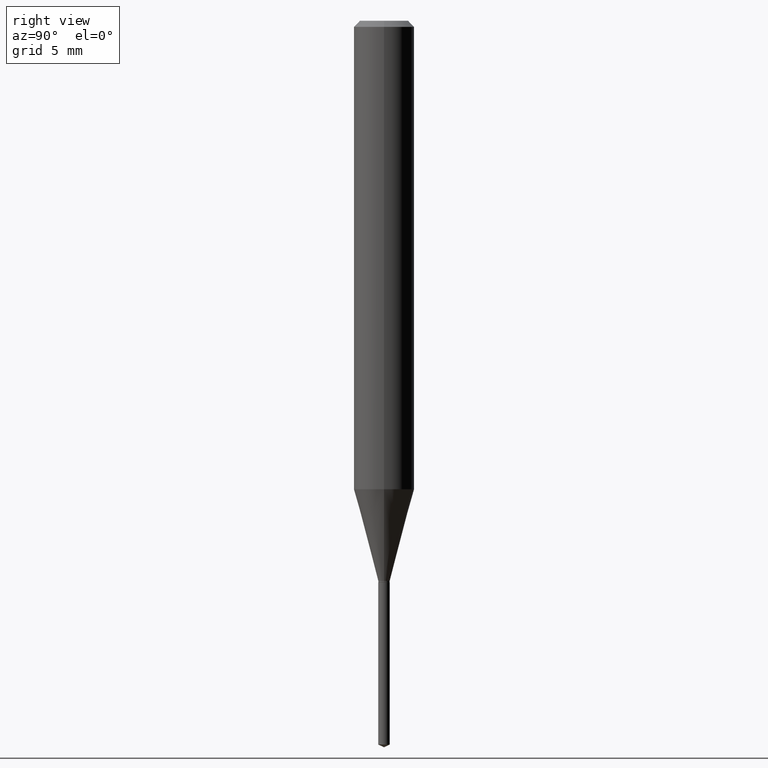
[diagram: clean part render]
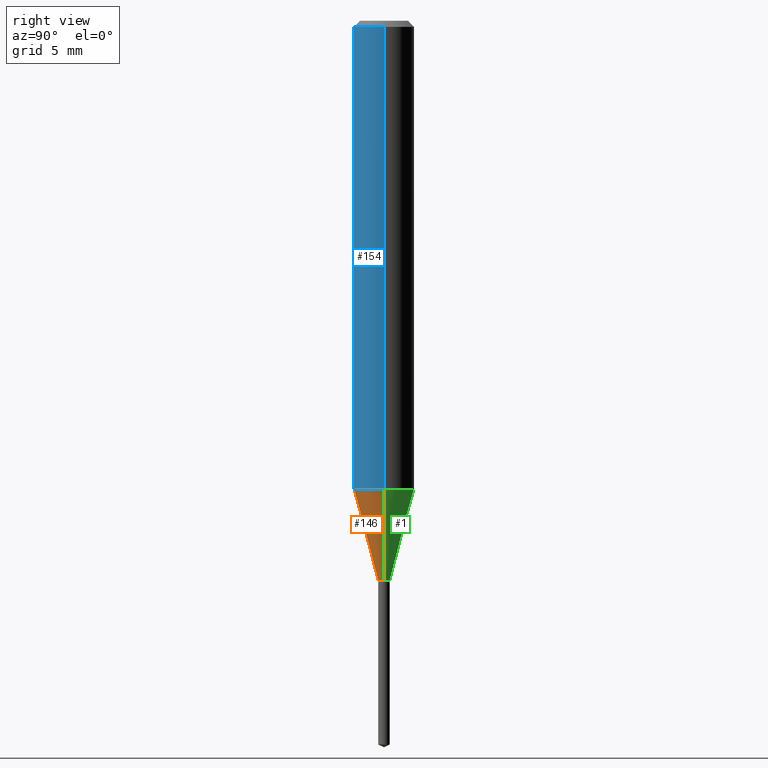
[diagram: same view with three faces highlighted in distinct colors, each labeled with its STEP entity id]
A machine part, right view with three faces highlighted in distinct colors.
Their STEP definitions:

[orange] entity #146 — the highlighted conical surface has half-angle 15 deg.
#10 = CARTESIAN_POINT ( 'NONE',  ( -0.01180000000000000146, -3.954054125552405839E-15, -1.156500000000000083 ) ) ;
#19 = DIRECTION ( 'NONE',  ( -0.2588190451025212391, 5.211531920934549464E-15, 0.9659258262890679791 ) ) ;
#22 = AXIS2_PLACEMENT_3D ( 'NONE', #385, #467, #208 ) ;
#23 = ORIENTED_EDGE ( 'NONE', *, *, #117, .T. ) ;
#62 = AXIS2_PLACEMENT_3D ( 'NONE', #429, #404, #328 ) ;
#105 = AXIS2_PLACEMENT_3D ( 'NONE', #119, #273, #426 ) ;
#109 = CIRCLE ( 'NONE', #105, 0.06250000000000012490 ) ;
#117 = EDGE_CURVE ( 'NONE', #444, #288, #274, .T. ) ;
#119 = CARTESIAN_POINT ( 'NONE',  ( 2.365465353019618098E-29, -3.377257610834867681E-15, -0.9672850240562579360 ) ) ;
#120 = FACE_OUTER_BOUND ( 'NONE', #248, .T. ) ;
#126 = CARTESIAN_POINT ( 'NONE',  ( 0.01180000000000000146, -4.120297127968796017E-15, -1.156500000000000083 ) ) ;
#146 = ADVANCED_FACE ( 'NONE', ( #120 ), #298, .T. ) ;
#168 = LINE ( 'NONE', #126, #417 ) ;
#180 = ORIENTED_EDGE ( 'NONE', *, *, #475, .F. ) ;
#185 = CARTESIAN_POINT ( 'NONE',  ( -0.01180000000000000146, -3.959291347560671139E-15, -1.156500000000000083 ) ) ;
#200 = VECTOR ( 'NONE', #19, 39.37007874015748854 ) ;
#208 = DIRECTION ( 'NONE',  ( 1.000000000000000000, -6.982962677686258033E-15, 0.000000000000000000 ) ) ;
#215 = ORIENTED_EDGE ( 'NONE', *, *, #218, .T. ) ;
#218 = EDGE_CURVE ( 'NONE', #288, #239, #168, .T. ) ;
#239 = VERTEX_POINT ( 'NONE', #278 ) ;
#248 = EDGE_LOOP ( 'NONE', ( #180, #23, #215, #442 ) ) ;
#273 = DIRECTION ( 'NONE',  ( -2.445468806185136597E-29, 3.491481338843145583E-15, 1.000000000000000000 ) ) ;
#274 = CIRCLE ( 'NONE', #22, 0.01180000000000000146 ) ;
#278 = CARTESIAN_POINT ( 'NONE',  ( 0.06250000000000013878, -3.813692778190260139E-15, -0.9672850240562579360 ) ) ;
#288 = VERTEX_POINT ( 'NONE', #428 ) ;
#298 = CONICAL_SURFACE ( 'NONE', #62, 0.01180000000000000146, 0.2617993877991499629 ) ;
#299 = CARTESIAN_POINT ( 'NONE',  ( -0.06250000000000013878, -2.933168400984803882E-15, -0.9672850240562579360 ) ) ;
#317 = EDGE_CURVE ( 'NONE', #367, #239, #109, .T. ) ;
#328 = DIRECTION ( 'NONE',  ( 1.000000000000000000, -6.982962677686258033E-15, 0.000000000000000000 ) ) ;
#367 = VERTEX_POINT ( 'NONE', #299 ) ;
#385 = CARTESIAN_POINT ( 'NONE',  ( 2.828184674353110591E-29, -4.037898168372097893E-15, -1.156500000000000083 ) ) ;
#404 = DIRECTION ( 'NONE',  ( -2.445468806185136597E-29, 3.491481338843145583E-15, 1.000000000000000000 ) ) ;
#417 = VECTOR ( 'NONE', #465, 39.37007874015748854 ) ;
#426 = DIRECTION ( 'NONE',  ( 1.000000000000000000, -6.982962677686264344E-15, 0.000000000000000000 ) ) ;
#427 = LINE ( 'NONE', #10, #200 ) ;
#428 = CARTESIAN_POINT ( 'NONE',  ( 0.01180000000000000146, -4.120297127968796017E-15, -1.156500000000000083 ) ) ;
#429 = CARTESIAN_POINT ( 'NONE',  ( 2.828184674353110591E-29, -4.037898168372097893E-15, -1.156500000000000083 ) ) ;
#442 = ORIENTED_EDGE ( 'NONE', *, *, #317, .F. ) ;
#444 = VERTEX_POINT ( 'NONE', #185 ) ;
#465 = DIRECTION ( 'NONE',  ( 0.2588190451025212391, 1.565188264969622362E-15, 0.9659258262890679791 ) ) ;
#467 = DIRECTION ( 'NONE',  ( -2.445468806185136597E-29, 3.491481338843145583E-15, 1.000000000000000000 ) ) ;
#475 = EDGE_CURVE ( 'NONE', #444, #367, #427, .T. ) ;

[blue] entity #154 — the highlighted cylindrical surface (edge-blend (fillet) strip) has radius 1.5875 mm, axis along (-0, 0, 1).
#6 = DIRECTION ( 'NONE',  ( -2.445468806185136877E-29, 3.491481338843145188E-15, 1.000000000000000000 ) ) ;
#47 = CARTESIAN_POINT ( 'NONE',  ( -0.06250000000000000000, -1.266361353935139822E-15, -0.01250000000000008396 ) ) ;
#56 = LINE ( 'NONE', #160, #204 ) ;
#63 = CARTESIAN_POINT ( 'NONE',  ( 0.000000000000000000, 0.000000000000000000, 0.000000000000000000 ) ) ;
#65 = FACE_OUTER_BOUND ( 'NONE', #213, .T. ) ;
#74 = AXIS2_PLACEMENT_3D ( 'NONE', #63, #142, #256 ) ;
#105 = AXIS2_PLACEMENT_3D ( 'NONE', #119, #273, #426 ) ;
#109 = CIRCLE ( 'NONE', #105, 0.06250000000000012490 ) ;
#119 = CARTESIAN_POINT ( 'NONE',  ( 2.365465353019618098E-29, -3.377257610834867681E-15, -0.9672850240562579360 ) ) ;
#129 = DIRECTION ( 'NONE',  ( -2.445468806185136877E-29, 3.491481338843145188E-15, 1.000000000000000000 ) ) ;
#142 = DIRECTION ( 'NONE',  ( -2.445468806185136597E-29, 3.491481338843145583E-15, 1.000000000000000000 ) ) ;
#153 = CIRCLE ( 'NONE', #433, 0.06250000000000000000 ) ;
#154 = ADVANCED_FACE ( 'NONE', ( #65 ), #489, .T. ) ;
#160 = CARTESIAN_POINT ( 'NONE',  ( -0.06250000000000006939, 4.440892098500631092E-16, -3.074334431409319267E-30 ) ) ;
#174 = ORIENTED_EDGE ( 'NONE', *, *, #271, .F. ) ;
#189 = CARTESIAN_POINT ( 'NONE',  ( 0.06250000000000006939, -4.364351673553921624E-16, 3.047610484872463374E-30 ) ) ;
#204 = VECTOR ( 'NONE', #129, 39.37007874015748143 ) ;
#213 = EDGE_LOOP ( 'NONE', ( #174, #490, #421, #409 ) ) ;
#229 = EDGE_CURVE ( 'NONE', #250, #325, #153, .T. ) ;
#238 = CARTESIAN_POINT ( 'NONE',  ( 0.06250000000000000000, -4.800786840909313294E-16, -0.01250000000000008396 ) ) ;
#239 = VERTEX_POINT ( 'NONE', #278 ) ;
#250 = VERTEX_POINT ( 'NONE', #47 ) ;
#256 = DIRECTION ( 'NONE',  ( 1.000000000000000000, -6.982962677686266711E-15, 4.876176775795935793E-29 ) ) ;
#257 = LINE ( 'NONE', #189, #443 ) ;
#271 = EDGE_CURVE ( 'NONE', #367, #250, #56, .T. ) ;
#273 = DIRECTION ( 'NONE',  ( -2.445468806185136597E-29, 3.491481338843145583E-15, 1.000000000000000000 ) ) ;
#278 = CARTESIAN_POINT ( 'NONE',  ( 0.06250000000000013878, -3.813692778190260139E-15, -0.9672850240562579360 ) ) ;
#299 = CARTESIAN_POINT ( 'NONE',  ( -0.06250000000000013878, -2.933168400984803882E-15, -0.9672850240562579360 ) ) ;
#317 = EDGE_CURVE ( 'NONE', #367, #239, #109, .T. ) ;
#325 = VERTEX_POINT ( 'NONE', #238 ) ;
#367 = VERTEX_POINT ( 'NONE', #299 ) ;
#388 = DIRECTION ( 'NONE',  ( -2.445468806185136597E-29, 3.491481338843145583E-15, 1.000000000000000000 ) ) ;
#409 = ORIENTED_EDGE ( 'NONE', *, *, #229, .F. ) ;
#419 = EDGE_CURVE ( 'NONE', #239, #325, #257, .T. ) ;
#421 = ORIENTED_EDGE ( 'NONE', *, *, #419, .T. ) ;
#426 = DIRECTION ( 'NONE',  ( 1.000000000000000000, -6.982962677686264344E-15, 0.000000000000000000 ) ) ;
#433 = AXIS2_PLACEMENT_3D ( 'NONE', #473, #388, #477 ) ;
#443 = VECTOR ( 'NONE', #6, 39.37007874015748143 ) ;
#473 = CARTESIAN_POINT ( 'NONE',  ( 3.056836007731441415E-31, -4.364351673553961684E-17, -0.01250000000000008396 ) ) ;
#477 = DIRECTION ( 'NONE',  ( 1.000000000000000000, -6.982962677686266711E-15, 0.000000000000000000 ) ) ;
#489 = CYLINDRICAL_SURFACE ( 'NONE', #74, 0.06250000000000006939 ) ;
#490 = ORIENTED_EDGE ( 'NONE', *, *, #317, .T. ) ;

[green] entity #1 — the highlighted conical surface has half-angle 15 deg.
#1 = ADVANCED_FACE ( 'NONE', ( #143 ), #226, .T. ) ;
#10 = CARTESIAN_POINT ( 'NONE',  ( -0.01180000000000000146, -3.954054125552405839E-15, -1.156500000000000083 ) ) ;
#19 = DIRECTION ( 'NONE',  ( -0.2588190451025212391, 5.211531920934549464E-15, 0.9659258262890679791 ) ) ;
#20 = DIRECTION ( 'NONE',  ( 1.000000000000000000, -6.982962677686264344E-15, 0.000000000000000000 ) ) ;
#50 = AXIS2_PLACEMENT_3D ( 'NONE', #293, #81, #456 ) ;
#59 = ORIENTED_EDGE ( 'NONE', *, *, #475, .T. ) ;
#64 = ORIENTED_EDGE ( 'NONE', *, *, #258, .F. ) ;
#81 = DIRECTION ( 'NONE',  ( -2.445468806185136597E-29, 3.491481338843145583E-15, 1.000000000000000000 ) ) ;
#87 = ORIENTED_EDGE ( 'NONE', *, *, #218, .F. ) ;
#103 = CIRCLE ( 'NONE', #375, 0.06250000000000012490 ) ;
#126 = CARTESIAN_POINT ( 'NONE',  ( 0.01180000000000000146, -4.120297127968796017E-15, -1.156500000000000083 ) ) ;
#143 = FACE_OUTER_BOUND ( 'NONE', #435, .T. ) ;
#145 = DIRECTION ( 'NONE',  ( 1.000000000000000000, -6.982962677686258033E-15, 0.000000000000000000 ) ) ;
#159 = EDGE_CURVE ( 'NONE', #288, #444, #335, .T. ) ;
#168 = LINE ( 'NONE', #126, #417 ) ;
#185 = CARTESIAN_POINT ( 'NONE',  ( -0.01180000000000000146, -3.959291347560671139E-15, -1.156500000000000083 ) ) ;
#200 = VECTOR ( 'NONE', #19, 39.37007874015748854 ) ;
#218 = EDGE_CURVE ( 'NONE', #288, #239, #168, .T. ) ;
#223 = CARTESIAN_POINT ( 'NONE',  ( 2.828184674353110591E-29, -4.037898168372097893E-15, -1.156500000000000083 ) ) ;
#226 = CONICAL_SURFACE ( 'NONE', #50, 0.01180000000000000146, 0.2617993877991499629 ) ;
#239 = VERTEX_POINT ( 'NONE', #278 ) ;
#258 = EDGE_CURVE ( 'NONE', #239, #367, #103, .T. ) ;
#278 = CARTESIAN_POINT ( 'NONE',  ( 0.06250000000000013878, -3.813692778190260139E-15, -0.9672850240562579360 ) ) ;
#279 = CARTESIAN_POINT ( 'NONE',  ( 2.365465353019618098E-29, -3.377257610834867681E-15, -0.9672850240562579360 ) ) ;
#283 = DIRECTION ( 'NONE',  ( -2.445468806185136597E-29, 3.491481338843145583E-15, 1.000000000000000000 ) ) ;
#288 = VERTEX_POINT ( 'NONE', #428 ) ;
#293 = CARTESIAN_POINT ( 'NONE',  ( 2.828184674353110591E-29, -4.037898168372097893E-15, -1.156500000000000083 ) ) ;
#296 = DIRECTION ( 'NONE',  ( -2.445468806185136597E-29, 3.491481338843145583E-15, 1.000000000000000000 ) ) ;
#299 = CARTESIAN_POINT ( 'NONE',  ( -0.06250000000000013878, -2.933168400984803882E-15, -0.9672850240562579360 ) ) ;
#335 = CIRCLE ( 'NONE', #361, 0.01180000000000000146 ) ;
#358 = ORIENTED_EDGE ( 'NONE', *, *, #159, .T. ) ;
#361 = AXIS2_PLACEMENT_3D ( 'NONE', #223, #296, #145 ) ;
#367 = VERTEX_POINT ( 'NONE', #299 ) ;
#375 = AXIS2_PLACEMENT_3D ( 'NONE', #279, #283, #20 ) ;
#417 = VECTOR ( 'NONE', #465, 39.37007874015748854 ) ;
#427 = LINE ( 'NONE', #10, #200 ) ;
#428 = CARTESIAN_POINT ( 'NONE',  ( 0.01180000000000000146, -4.120297127968796017E-15, -1.156500000000000083 ) ) ;
#435 = EDGE_LOOP ( 'NONE', ( #358, #59, #64, #87 ) ) ;
#444 = VERTEX_POINT ( 'NONE', #185 ) ;
#456 = DIRECTION ( 'NONE',  ( 1.000000000000000000, -6.982962677686258033E-15, 0.000000000000000000 ) ) ;
#465 = DIRECTION ( 'NONE',  ( 0.2588190451025212391, 1.565188264969622362E-15, 0.9659258262890679791 ) ) ;
#475 = EDGE_CURVE ( 'NONE', #444, #367, #427, .T. ) ;